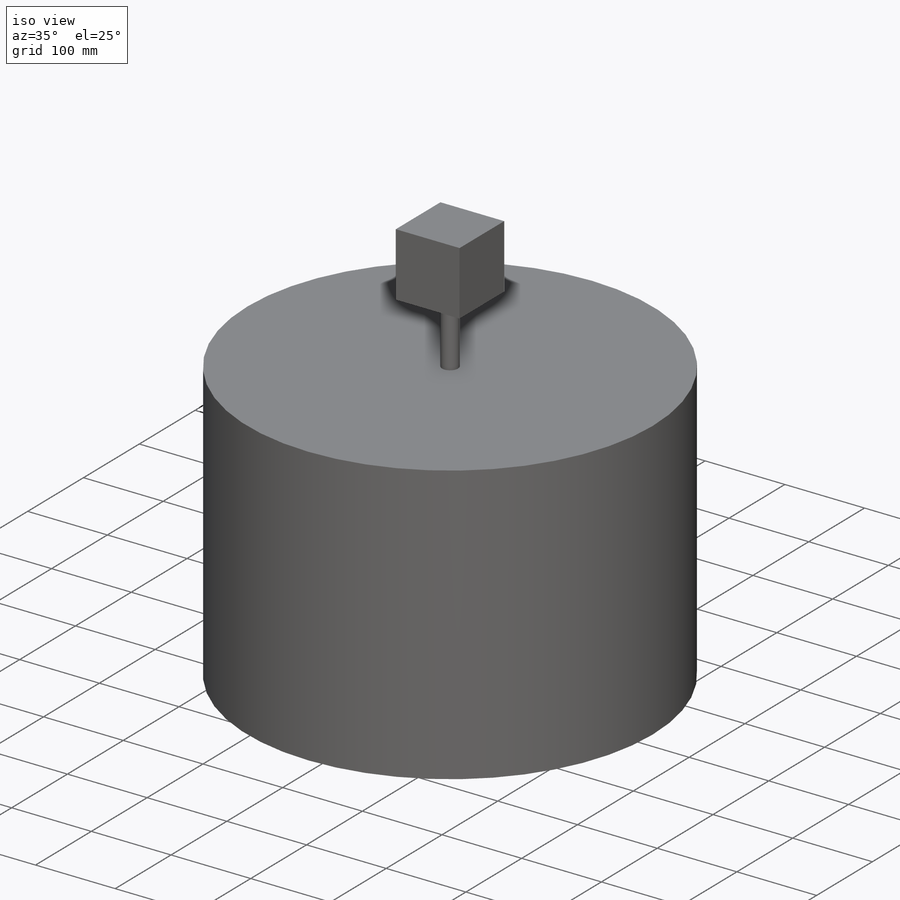
[diagram: iso view]
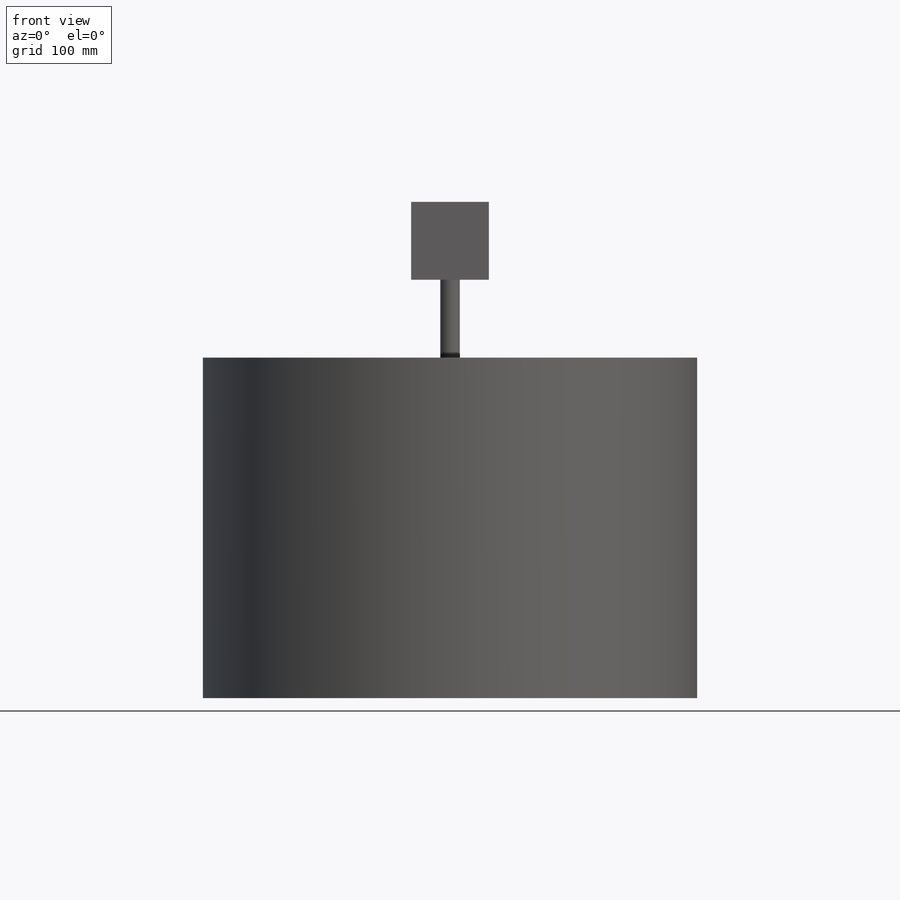
[diagram: front view]
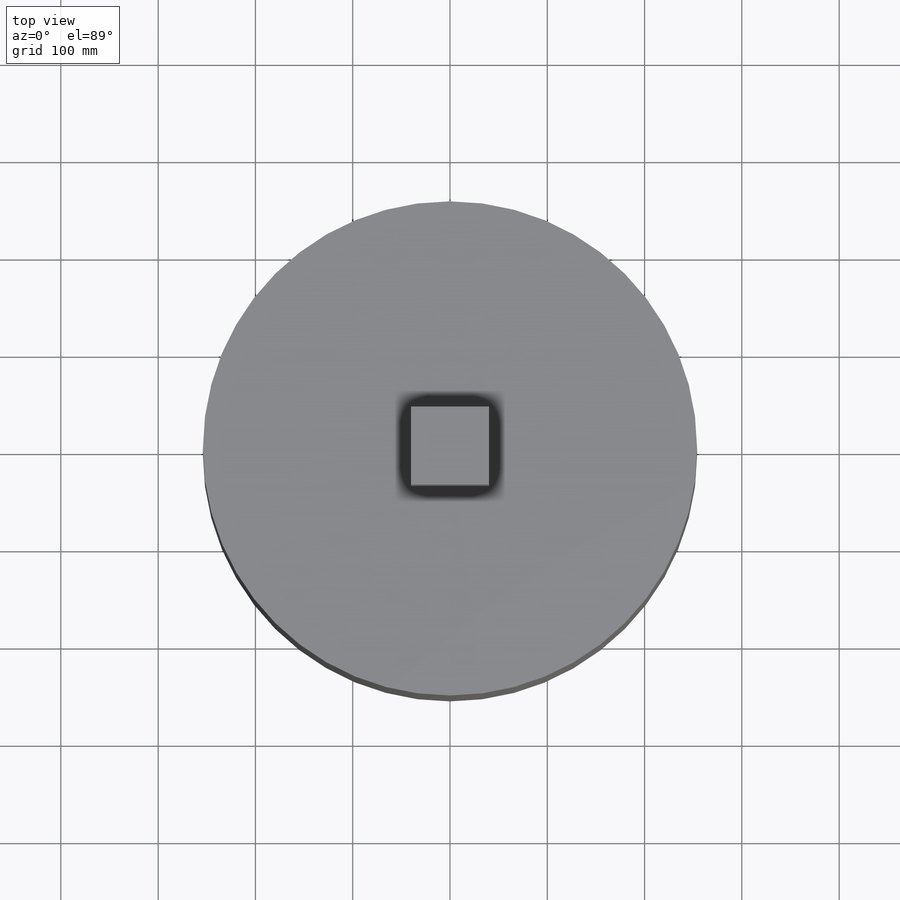
[diagram: top view]
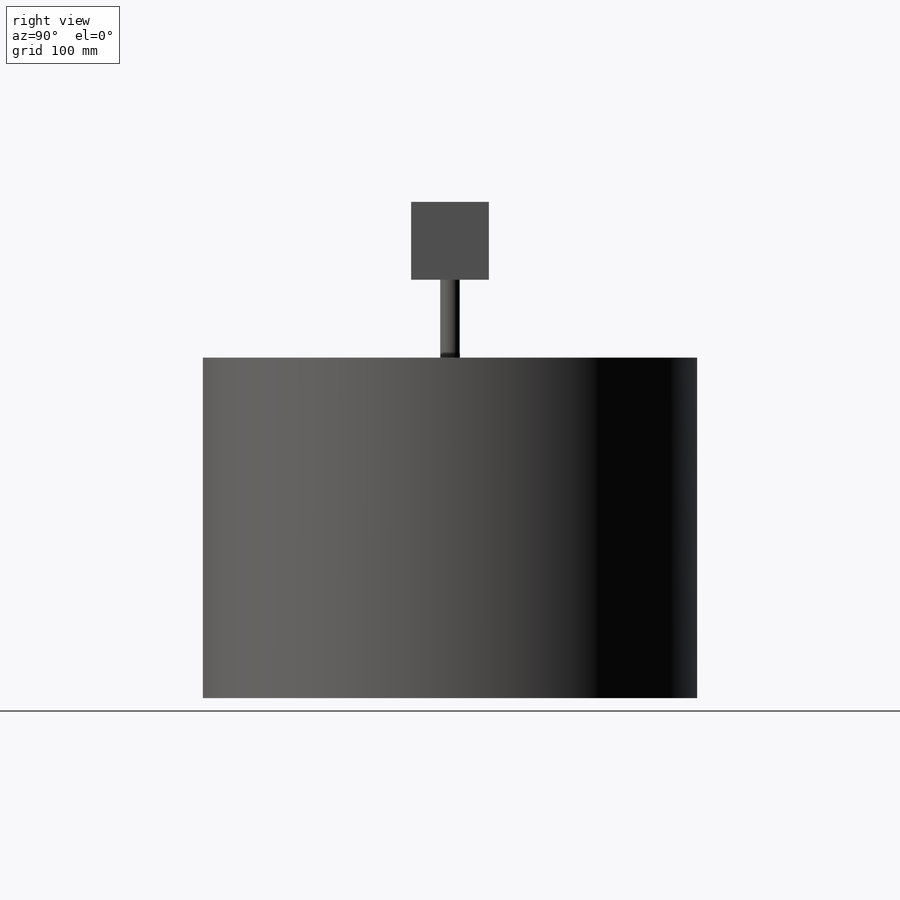
[diagram: right view]
SOLIDWORKS PART (.sldprt)
format: sldprt  version: not decoded by parser v0  size: 109,568 bytes
history: native  units: mm
features: plane x3, sketch x3, extrude x3, material x1 (+11 scaffold rows collapsed)
feature tree (21):
  scaffold x11  (default folders/planes/origin — collapsed)
  material  "Matériau <non spécifié>"
  plane  "Plan de face"
  plane  "Plan de dessus"
  plane  "Plan de droite"
  sketch  "Esquisse1"  dims[D1=508.0mm]
  extrude  "Extrusion1"  Depth=350mm
  sketch  "Esquisse2"  dims[D1=20.0mm]
  extrude  "Extrusion2"  Depth=80mm
  sketch  "Esquisse3"  dims[D1=80.0mm]
  extrude  "Extrusion3"  Depth=80mm
decode coverage: 6 of 6 modeling features carry decoded parameters
note: suppression state not decoded; provenance and decode notes live in map.json
